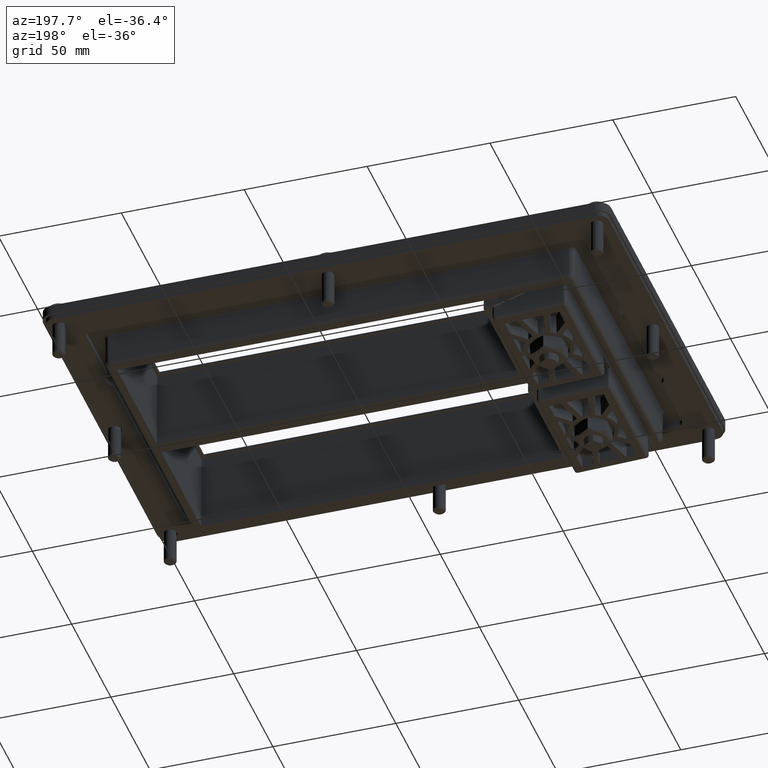
[diagram: clean part render]
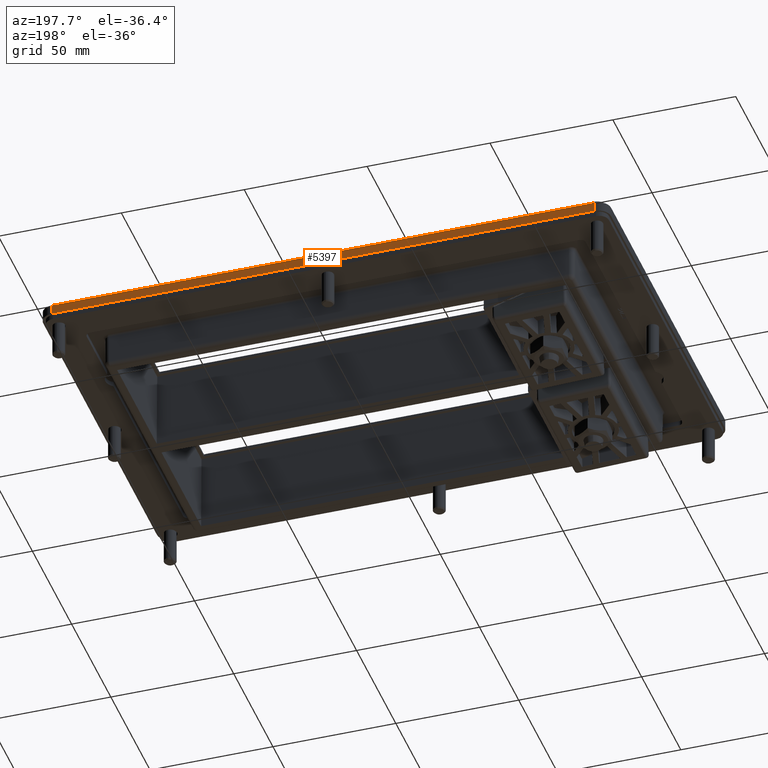
[diagram: same view with one face highlighted and labeled with its STEP entity id]
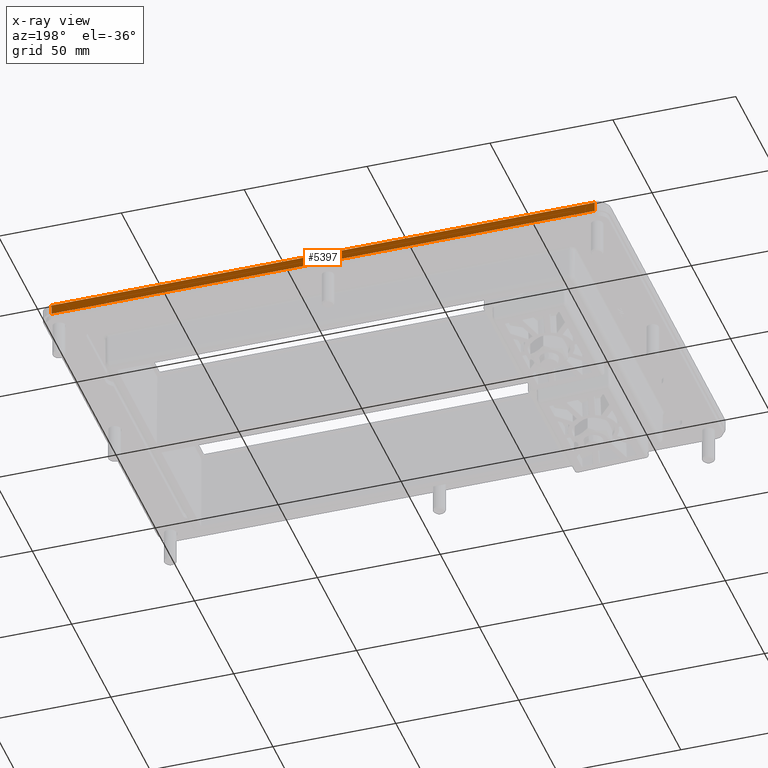
[diagram: x-ray of the same camera — body ghosted, the highlighted face saturated]
A machine part, auxiliary view. The second image highlights one B-rep face of the part: STEP entity #5397.
The next image is the same camera in x-ray: the body ghosted, the highlighted face saturated — about 0% of this face is hidden behind the body in this view.
In plain terms, the highlighted planar face has unit normal (0, 1, 0).
Its self-contained STEP definition (entity closure, byte-faithful):
#1054=CARTESIAN_POINT('',(110.5000000000001,49.250000000000057,18.500000000000004));
#1055=VERTEX_POINT('',#1054);
#1063=CARTESIAN_POINT('',(-110.5000000000001,49.25,18.500000000000004));
#1064=VERTEX_POINT('',#1063);
#1065=CARTESIAN_POINT('',(-110.5000000000001,49.25,18.500000000000004));
#1066=DIRECTION('',(1.0,0.0,0.0));
#1067=VECTOR('',#1066,221.0000000000002);
#1068=LINE('',#1065,#1067);
#1069=EDGE_CURVE('',#1064,#1055,#1068,.T.);
#1890=CARTESIAN_POINT('',(-110.5000000000001,49.25,14.500000000000002));
#1891=VERTEX_POINT('',#1890);
#1899=CARTESIAN_POINT('',(110.5000000000001,49.250000000000057,14.500000000000002));
#1900=VERTEX_POINT('',#1899);
#1901=CARTESIAN_POINT('',(110.5000000000001,49.250000000000057,14.500000000000002));
#1902=DIRECTION('',(-1.0,0.0,0.0));
#1903=VECTOR('',#1902,221.0000000000002);
#1904=LINE('',#1901,#1903);
#1905=EDGE_CURVE('',#1900,#1891,#1904,.T.);
#5365=CARTESIAN_POINT('',(-110.5000000000001,49.25,18.500000000000004));
#5366=DIRECTION('',(0.0,0.0,-1.0));
#5367=VECTOR('',#5366,4.0);
#5368=LINE('',#5365,#5367);
#5369=EDGE_CURVE('',#1064,#1891,#5368,.T.);
#5381=CARTESIAN_POINT('',(-121.5500000000001,49.25,14.300000000000004));
#5382=DIRECTION('',(0.0,1.0,0.0));
#5383=DIRECTION('',(0.0,0.0,1.0));
#5384=AXIS2_PLACEMENT_3D('',#5381,#5382,#5383);
#5385=PLANE('',#5384);
#5386=ORIENTED_EDGE('',*,*,#5369,.F.);
#5387=ORIENTED_EDGE('',*,*,#1069,.T.);
#5388=CARTESIAN_POINT('',(110.5000000000001,49.250000000000057,14.500000000000002));
#5389=DIRECTION('',(0.0,0.0,1.0));
#5390=VECTOR('',#5389,4.000000000000002);
#5391=LINE('',#5388,#5390);
#5392=EDGE_CURVE('',#1900,#1055,#5391,.T.);
#5393=ORIENTED_EDGE('',*,*,#5392,.F.);
#5394=ORIENTED_EDGE('',*,*,#1905,.T.);
#5395=EDGE_LOOP('',(#5386,#5387,#5393,#5394));
#5396=FACE_OUTER_BOUND('',#5395,.T.);
#5397=ADVANCED_FACE('',(#5396),#5385,.T.);